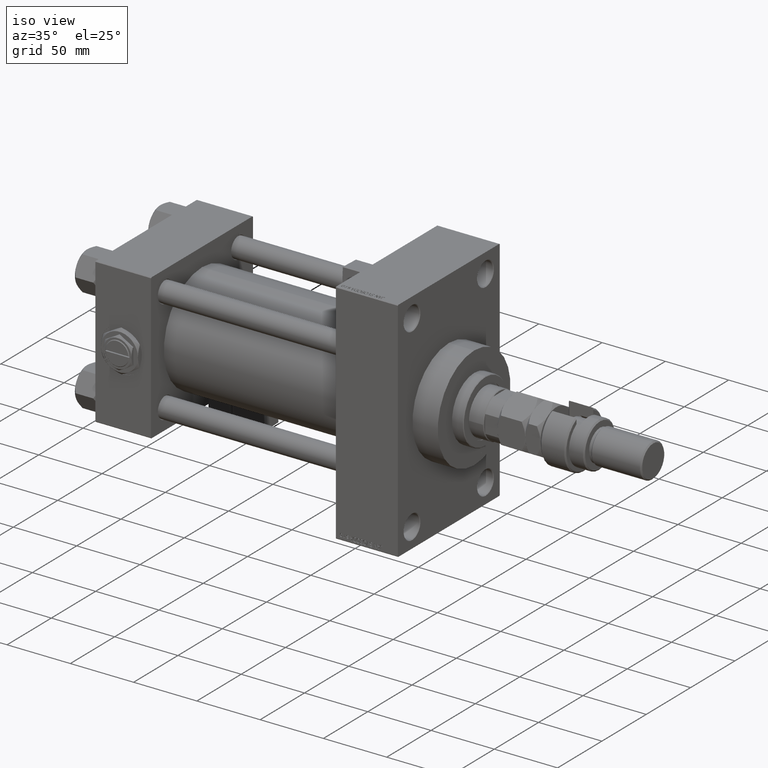
[diagram: clean part render]
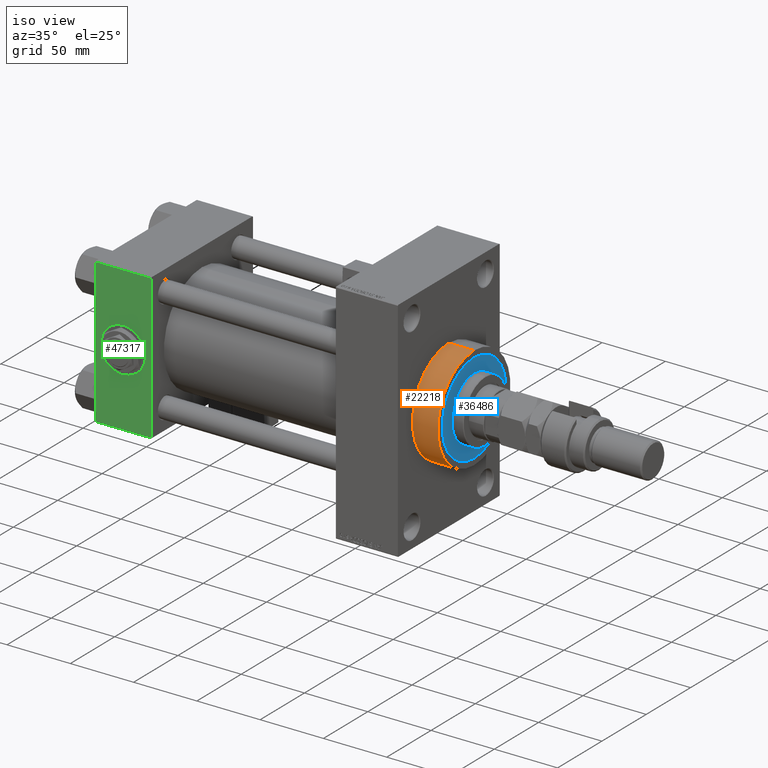
[diagram: same view with three faces highlighted in distinct colors, each labeled with its STEP entity id]
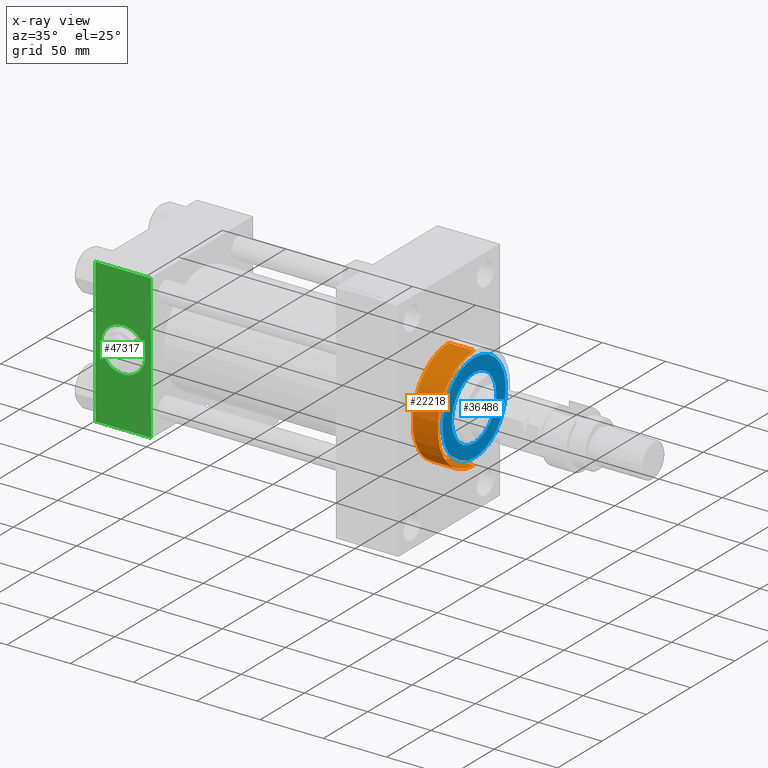
[diagram: x-ray of the same camera — body ghosted, the three highlighted faces saturated]
A machine part, iso view with three faces highlighted in distinct colors.
The next image is the same camera in x-ray (body ghosted, the three faces saturated) — at least one of them is partly hidden behind the body in this view.
Their STEP definitions:

[orange] entity #22218 — the highlighted cylindrical surface (partial cylindrical patch) has radius 41 mm, axis along (-1, -0, -0).
#1230 = VERTEX_POINT ( 'NONE', #44942 ) ;
#2288 = ORIENTED_EDGE ( 'NONE', *, *, #51802, .T. ) ;
#2748 = VERTEX_POINT ( 'NONE', #43084 ) ;
#3070 = DIRECTION ( 'NONE',  ( -1.000000000000000000, -0.000000000000000000, -0.000000000000000000 ) ) ;
#3159 = CYLINDRICAL_SURFACE ( 'NONE', #5874, 41.00000000000000000 ) ;
#4567 = DIRECTION ( 'NONE',  ( 1.000000000000000000, 0.000000000000000000, 0.000000000000000000 ) ) ;
#5874 = AXIS2_PLACEMENT_3D ( 'NONE', #20825, #37621, #46175 ) ;
#6608 = EDGE_CURVE ( 'NONE', #1230, #48163, #40441, .T. ) ;
#6654 = VERTEX_POINT ( 'NONE', #21928 ) ;
#10314 = CARTESIAN_POINT ( 'NONE',  ( 259.0000000000000000, 5.021051876504148963E-15, -41.00000000000000000 ) ) ;
#17911 = CARTESIAN_POINT ( 'NONE',  ( 259.0000000000000000, 5.021051876504148963E-15, -41.00000000000000000 ) ) ;
#17998 = ORIENTED_EDGE ( 'NONE', *, *, #6608, .F. ) ;
#20825 = CARTESIAN_POINT ( 'NONE',  ( 259.0000000000000000, 0.000000000000000000, 0.000000000000000000 ) ) ;
#21363 = ORIENTED_EDGE ( 'NONE', *, *, #26529, .F. ) ;
#21928 = CARTESIAN_POINT ( 'NONE',  ( 239.0000000000000000, 5.021051876504148963E-15, -41.00000000000000000 ) ) ;
#22218 = ADVANCED_FACE ( 'NONE', ( #29375 ), #3159, .T. ) ;
#23271 = DIRECTION ( 'NONE',  ( -1.000000000000000000, -0.000000000000000000, -0.000000000000000000 ) ) ;
#26529 = EDGE_CURVE ( 'NONE', #48163, #6654, #26619, .T. ) ;
#26619 = LINE ( 'NONE', #10314, #33372 ) ;
#27287 = CIRCLE ( 'NONE', #38683, 41.00000000000000000 ) ;
#27894 = EDGE_CURVE ( 'NONE', #2748, #6654, #27287, .T. ) ;
#29353 = CARTESIAN_POINT ( 'NONE',  ( 239.0000000000000000, 0.000000000000000000, 0.000000000000000000 ) ) ;
#29375 = FACE_OUTER_BOUND ( 'NONE', #46540, .T. ) ;
#33372 = VECTOR ( 'NONE', #23271, 1000.000000000000000 ) ;
#35771 = VECTOR ( 'NONE', #3070, 1000.000000000000000 ) ;
#36170 = LINE ( 'NONE', #40838, #35771 ) ;
#37621 = DIRECTION ( 'NONE',  ( -1.000000000000000000, -0.000000000000000000, -0.000000000000000000 ) ) ;
#37839 = ORIENTED_EDGE ( 'NONE', *, *, #27894, .T. ) ;
#38683 = AXIS2_PLACEMENT_3D ( 'NONE', #29353, #45881, #45590 ) ;
#38999 = DIRECTION ( 'NONE',  ( 0.000000000000000000, 0.000000000000000000, -1.000000000000000000 ) ) ;
#40441 = CIRCLE ( 'NONE', #43092, 41.00000000000000000 ) ;
#40838 = CARTESIAN_POINT ( 'NONE',  ( 259.0000000000000000, 0.000000000000000000, 41.00000000000000000 ) ) ;
#43084 = CARTESIAN_POINT ( 'NONE',  ( 239.0000000000000000, 0.000000000000000000, 41.00000000000000000 ) ) ;
#43092 = AXIS2_PLACEMENT_3D ( 'NONE', #51151, #4567, #38999 ) ;
#44942 = CARTESIAN_POINT ( 'NONE',  ( 259.0000000000000000, 0.000000000000000000, 41.00000000000000000 ) ) ;
#45590 = DIRECTION ( 'NONE',  ( 0.000000000000000000, 0.000000000000000000, -1.000000000000000000 ) ) ;
#45881 = DIRECTION ( 'NONE',  ( 1.000000000000000000, 0.000000000000000000, 0.000000000000000000 ) ) ;
#46175 = DIRECTION ( 'NONE',  ( 0.000000000000000000, 0.000000000000000000, 1.000000000000000000 ) ) ;
#46540 = EDGE_LOOP ( 'NONE', ( #21363, #17998, #2288, #37839 ) ) ;
#48163 = VERTEX_POINT ( 'NONE', #17911 ) ;
#51151 = CARTESIAN_POINT ( 'NONE',  ( 259.0000000000000000, 0.000000000000000000, 0.000000000000000000 ) ) ;
#51802 = EDGE_CURVE ( 'NONE', #1230, #2748, #36170, .T. ) ;

[blue] entity #36486 — the highlighted planar face has unit normal (1, -0, -0).
#520 = EDGE_LOOP ( 'NONE', ( #45655, #6185 ) ) ;
#608 = VERTEX_POINT ( 'NONE', #28897 ) ;
#2203 = CARTESIAN_POINT ( 'NONE',  ( 0.000000000000000000, 0.000000000000000000, 43.25999999999999801 ) ) ;
#3013 = PLANE ( 'NONE',  #32597 ) ;
#3502 = CARTESIAN_POINT ( 'NONE',  ( 36.00000000000000000, 4.408728476930470856E-15, 43.25999999999999801 ) ) ;
#6185 = ORIENTED_EDGE ( 'NONE', *, *, #29521, .T. ) ;
#6305 = CIRCLE ( 'NONE', #37087, 25.00000000000000000 ) ;
#6906 = DIRECTION ( 'NONE',  ( 0.000000000000000000, 0.000000000000000000, 1.000000000000000000 ) ) ;
#8037 = CIRCLE ( 'NONE', #27396, 36.00000000000000000 ) ;
#10898 = EDGE_CURVE ( 'NONE', #40319, #33675, #44992, .T. ) ;
#13277 = AXIS2_PLACEMENT_3D ( 'NONE', #2203, #6906, #53199 ) ;
#15259 = EDGE_LOOP ( 'NONE', ( #33754, #28227 ) ) ;
#17692 = CIRCLE ( 'NONE', #13277, 36.00000000000000000 ) ;
#19846 = DIRECTION ( 'NONE',  ( 0.000000000000000000, 0.000000000000000000, 1.000000000000000000 ) ) ;
#21803 = CARTESIAN_POINT ( 'NONE',  ( 0.000000000000000000, 0.000000000000000000, 43.25999999999999801 ) ) ;
#22922 = CARTESIAN_POINT ( 'NONE',  ( 0.000000000000000000, 0.000000000000000000, 43.25999999999999801 ) ) ;
#23768 = CARTESIAN_POINT ( 'NONE',  ( 0.000000000000000000, 0.000000000000000000, 43.25999999999999801 ) ) ;
#23886 = AXIS2_PLACEMENT_3D ( 'NONE', #30168, #33749, #25501 ) ;
#25501 = DIRECTION ( 'NONE',  ( 1.000000000000000000, 0.000000000000000000, 0.000000000000000000 ) ) ;
#27396 = AXIS2_PLACEMENT_3D ( 'NONE', #21803, #31139, #51571 ) ;
#28227 = ORIENTED_EDGE ( 'NONE', *, *, #10898, .F. ) ;
#28897 = CARTESIAN_POINT ( 'NONE',  ( -36.00000000000000000, 0.000000000000000000, 43.25999999999999801 ) ) ;
#29521 = EDGE_CURVE ( 'NONE', #42470, #608, #17692, .T. ) ;
#30168 = CARTESIAN_POINT ( 'NONE',  ( 0.000000000000000000, 0.000000000000000000, 43.25999999999999801 ) ) ;
#31129 = CARTESIAN_POINT ( 'NONE',  ( 25.00000000000000000, 3.061616997868383043E-15, 43.25999999999999801 ) ) ;
#31139 = DIRECTION ( 'NONE',  ( 0.000000000000000000, 0.000000000000000000, 1.000000000000000000 ) ) ;
#31356 = EDGE_CURVE ( 'NONE', #33675, #40319, #6305, .T. ) ;
#32237 = FACE_OUTER_BOUND ( 'NONE', #520, .T. ) ;
#32597 = AXIS2_PLACEMENT_3D ( 'NONE', #22922, #19846, #39714 ) ;
#33610 = EDGE_CURVE ( 'NONE', #608, #42470, #8037, .T. ) ;
#33675 = VERTEX_POINT ( 'NONE', #52908 ) ;
#33749 = DIRECTION ( 'NONE',  ( 0.000000000000000000, 0.000000000000000000, 1.000000000000000000 ) ) ;
#33754 = ORIENTED_EDGE ( 'NONE', *, *, #31356, .F. ) ;
#35567 = FACE_BOUND ( 'NONE', #15259, .T. ) ;
#35614 = DIRECTION ( 'NONE',  ( 1.000000000000000000, 0.000000000000000000, 0.000000000000000000 ) ) ;
#35884 = DIRECTION ( 'NONE',  ( 0.000000000000000000, 0.000000000000000000, 1.000000000000000000 ) ) ;
#36486 = ADVANCED_FACE ( 'NONE', ( #35567, #32237 ), #3013, .T. ) ;
#37087 = AXIS2_PLACEMENT_3D ( 'NONE', #23768, #35884, #35614 ) ;
#39714 = DIRECTION ( 'NONE',  ( 1.000000000000000000, 0.000000000000000000, -0.000000000000000000 ) ) ;
#40319 = VERTEX_POINT ( 'NONE', #31129 ) ;
#42470 = VERTEX_POINT ( 'NONE', #3502 ) ;
#44992 = CIRCLE ( 'NONE', #23886, 25.00000000000000000 ) ;
#45655 = ORIENTED_EDGE ( 'NONE', *, *, #33610, .T. ) ;
#51571 = DIRECTION ( 'NONE',  ( 1.000000000000000000, 0.000000000000000000, 0.000000000000000000 ) ) ;
#52908 = CARTESIAN_POINT ( 'NONE',  ( -25.00000000000000000, 0.000000000000000000, 43.25999999999999801 ) ) ;
#53199 = DIRECTION ( 'NONE',  ( 1.000000000000000000, 0.000000000000000000, 0.000000000000000000 ) ) ;

[green] entity #47317 — the highlighted planar face has unit normal (0, 1, 0).
#40 = AXIS2_PLACEMENT_3D ( 'NONE', #1924, #18748, #6349 ) ;
#936 = CIRCLE ( 'NONE', #40, 17.50000000000000000 ) ;
#1924 = CARTESIAN_POINT ( 'NONE',  ( 22.00000000000000000, -57.50000000000000711, 0.000000000000000000 ) ) ;
#2733 = CARTESIAN_POINT ( 'NONE',  ( 0.000000000000000000, -57.50000000000000711, 57.00000000000000711 ) ) ;
#3201 = LINE ( 'NONE', #53666, #22957 ) ;
#3332 = EDGE_CURVE ( 'NONE', #41472, #3979, #40360, .T. ) ;
#3979 = VERTEX_POINT ( 'NONE', #2733 ) ;
#5899 = LINE ( 'NONE', #13363, #39954 ) ;
#6349 = DIRECTION ( 'NONE',  ( 0.000000000000000000, 0.000000000000000000, -1.000000000000000000 ) ) ;
#7017 = CARTESIAN_POINT ( 'NONE',  ( 44.00000000000000000, -57.50000000000000711, 57.00000000000000711 ) ) ;
#7155 = CIRCLE ( 'NONE', #37979, 17.50000000000000000 ) ;
#7786 = FACE_BOUND ( 'NONE', #49441, .T. ) ;
#8617 = PLANE ( 'NONE',  #22423 ) ;
#8689 = VERTEX_POINT ( 'NONE', #23561 ) ;
#8989 = EDGE_CURVE ( 'NONE', #14230, #50315, #936, .T. ) ;
#9336 = EDGE_CURVE ( 'NONE', #41472, #8689, #3201, .T. ) ;
#11143 = DIRECTION ( 'NONE',  ( -1.000000000000000000, 0.000000000000000000, 0.000000000000000000 ) ) ;
#12547 = ORIENTED_EDGE ( 'NONE', *, *, #3332, .T. ) ;
#12787 = DIRECTION ( 'NONE',  ( 0.000000000000000000, 0.000000000000000000, -1.000000000000000000 ) ) ;
#13363 = CARTESIAN_POINT ( 'NONE',  ( 44.00000000000000000, -57.50000000000000711, -57.00000000000000711 ) ) ;
#14230 = VERTEX_POINT ( 'NONE', #38343 ) ;
#15896 = DIRECTION ( 'NONE',  ( 0.000000000000000000, 0.000000000000000000, -1.000000000000000000 ) ) ;
#16539 = VECTOR ( 'NONE', #11143, 1000.000000000000000 ) ;
#16705 = VERTEX_POINT ( 'NONE', #50143 ) ;
#18748 = DIRECTION ( 'NONE',  ( 0.000000000000000000, -1.000000000000000000, -8.673617379884036705E-17 ) ) ;
#19384 = CARTESIAN_POINT ( 'NONE',  ( 22.00000000000000355, -57.50000000000000711, 17.50000000000000000 ) ) ;
#20453 = LINE ( 'NONE', #45802, #42385 ) ;
#22423 = AXIS2_PLACEMENT_3D ( 'NONE', #46370, #29564, #38099 ) ;
#22957 = VECTOR ( 'NONE', #15896, 1000.000000000000000 ) ;
#23561 = CARTESIAN_POINT ( 'NONE',  ( 44.00000000000000000, -57.50000000000000711, -57.00000000000000711 ) ) ;
#26864 = DIRECTION ( 'NONE',  ( 1.000000000000000000, 0.000000000000000000, 0.000000000000000000 ) ) ;
#27148 = ORIENTED_EDGE ( 'NONE', *, *, #42944, .T. ) ;
#28714 = ORIENTED_EDGE ( 'NONE', *, *, #8989, .F. ) ;
#29564 = DIRECTION ( 'NONE',  ( -0.000000000000000000, 1.000000000000000000, 0.000000000000000000 ) ) ;
#30414 = CARTESIAN_POINT ( 'NONE',  ( 22.00000000000000000, -57.50000000000000711, 0.000000000000000000 ) ) ;
#31465 = EDGE_CURVE ( 'NONE', #3979, #16705, #20453, .T. ) ;
#32559 = DIRECTION ( 'NONE',  ( 0.000000000000000000, 0.000000000000000000, -1.000000000000000000 ) ) ;
#34059 = EDGE_CURVE ( 'NONE', #50315, #14230, #7155, .T. ) ;
#37979 = AXIS2_PLACEMENT_3D ( 'NONE', #30414, #50824, #12787 ) ;
#38099 = DIRECTION ( 'NONE',  ( 0.000000000000000000, -0.000000000000000000, 1.000000000000000000 ) ) ;
#38343 = CARTESIAN_POINT ( 'NONE',  ( 22.00000000000000000, -57.50000000000000711, -17.50000000000000000 ) ) ;
#39954 = VECTOR ( 'NONE', #26864, 1000.000000000000000 ) ;
#40360 = LINE ( 'NONE', #7017, #16539 ) ;
#41472 = VERTEX_POINT ( 'NONE', #43475 ) ;
#42385 = VECTOR ( 'NONE', #32559, 1000.000000000000000 ) ;
#42462 = ORIENTED_EDGE ( 'NONE', *, *, #31465, .T. ) ;
#42944 = EDGE_CURVE ( 'NONE', #16705, #8689, #5899, .T. ) ;
#43475 = CARTESIAN_POINT ( 'NONE',  ( 44.00000000000000000, -57.50000000000000711, 57.00000000000000711 ) ) ;
#43520 = EDGE_LOOP ( 'NONE', ( #42462, #27148, #45321, #12547 ) ) ;
#45321 = ORIENTED_EDGE ( 'NONE', *, *, #9336, .F. ) ;
#45802 = CARTESIAN_POINT ( 'NONE',  ( 0.000000000000000000, -57.50000000000000711, 57.49999999999999289 ) ) ;
#46370 = CARTESIAN_POINT ( 'NONE',  ( 44.00000000000000000, -57.50000000000000711, 57.49999999999999289 ) ) ;
#47317 = ADVANCED_FACE ( 'NONE', ( #7786, #51062 ), #8617, .F. ) ;
#49441 = EDGE_LOOP ( 'NONE', ( #28714, #52982 ) ) ;
#50143 = CARTESIAN_POINT ( 'NONE',  ( 0.000000000000000000, -57.50000000000000711, -57.00000000000000711 ) ) ;
#50315 = VERTEX_POINT ( 'NONE', #19384 ) ;
#50824 = DIRECTION ( 'NONE',  ( 0.000000000000000000, -1.000000000000000000, -8.673617379884036705E-17 ) ) ;
#51062 = FACE_OUTER_BOUND ( 'NONE', #43520, .T. ) ;
#52982 = ORIENTED_EDGE ( 'NONE', *, *, #34059, .F. ) ;
#53666 = CARTESIAN_POINT ( 'NONE',  ( 44.00000000000000000, -57.50000000000000711, 57.49999999999999289 ) ) ;